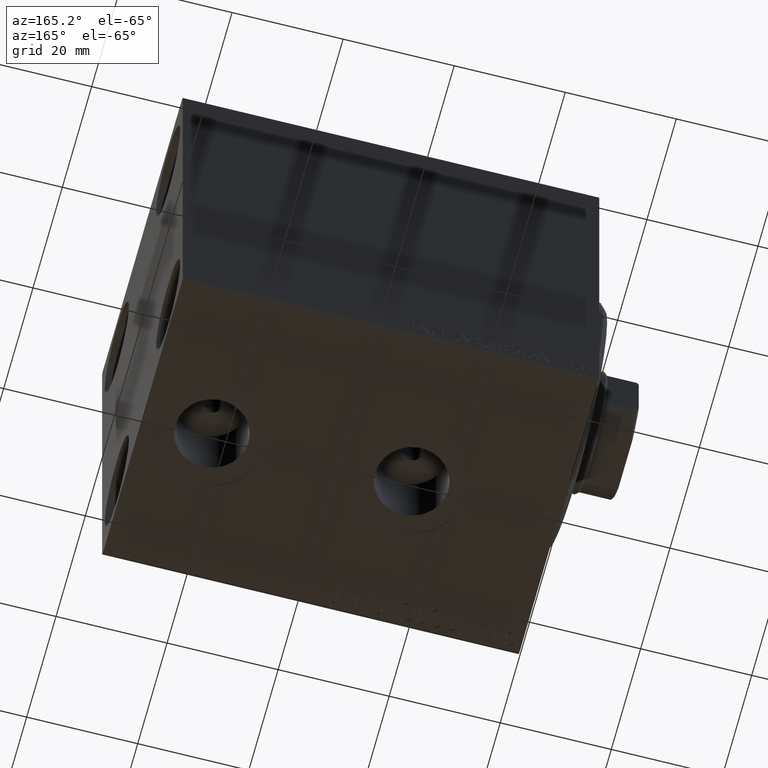
[diagram: clean part render]
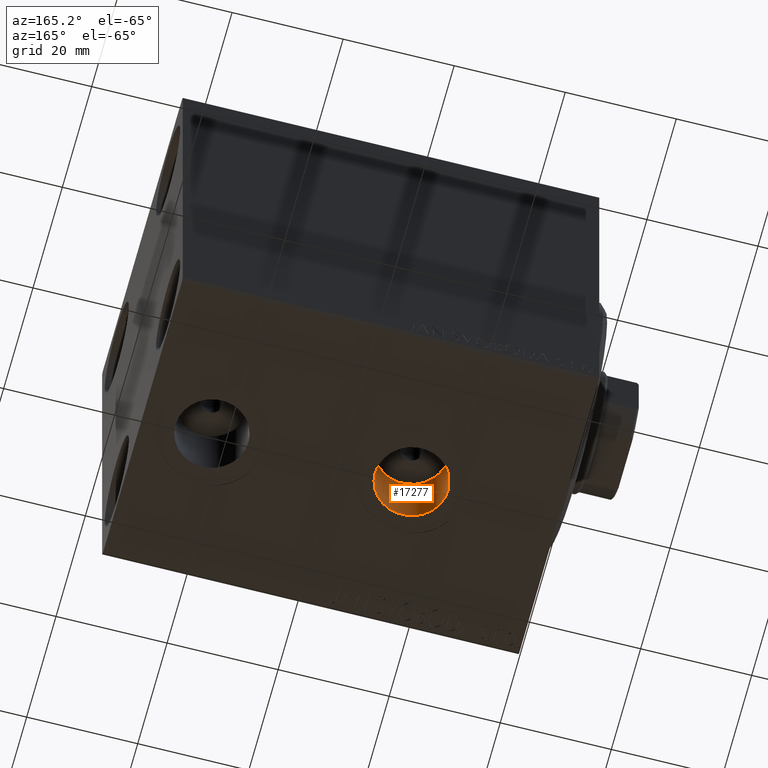
[diagram: same view with one face highlighted and labeled with its STEP entity id]
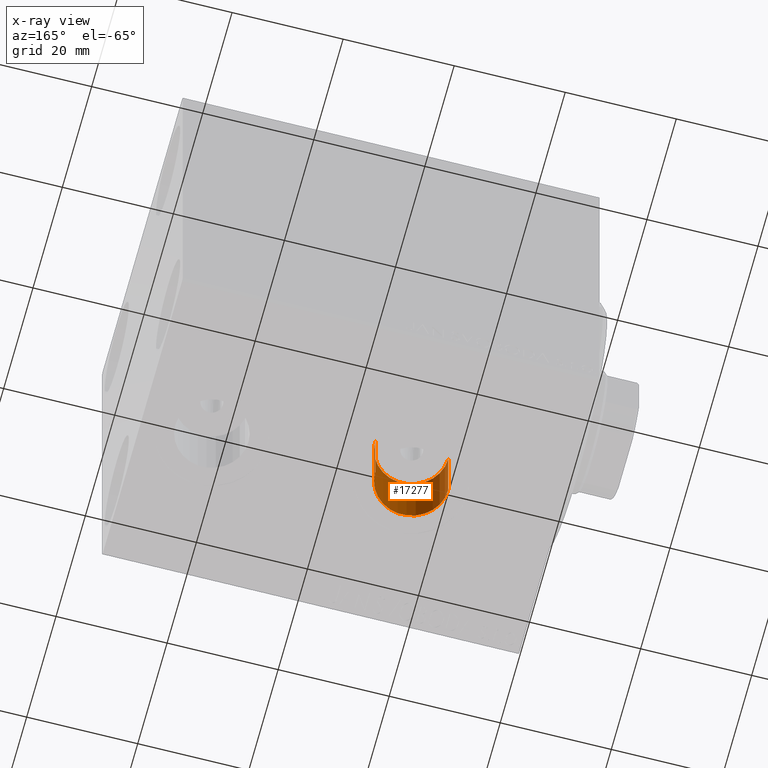
[diagram: x-ray of the same camera — body ghosted, the highlighted face saturated]
A machine part, auxiliary view. The second image highlights one B-rep face of the part: STEP entity #17277.
The next image is the same camera in x-ray: the body ghosted, the highlighted face saturated — about 0% of this face is hidden behind the body in this view.
In plain terms, the highlighted cylindrical surface (partial cylindrical patch) has radius 6.58 mm, axis along (-0, -0, -1).
Its self-contained STEP definition (entity closure, byte-faithful):
#23 = CARTESIAN_POINT ( 'NONE',  ( 33.07999999999999829, -1.921168617569957634E-15, -37.39999999999999858 ) ) ;
#1843 = DIRECTION ( 'NONE',  ( -1.000000000000000000, 0.000000000000000000, 0.000000000000000000 ) ) ;
#5344 = EDGE_CURVE ( 'NONE', #40597, #42571, #19593, .T. ) ;
#5541 = CARTESIAN_POINT ( 'NONE',  ( 19.91999999999999815, -2.726986211408916281E-15, -37.39999999999999858 ) ) ;
#5827 = DIRECTION ( 'NONE',  ( -1.000000000000000000, 0.000000000000000000, 0.000000000000000000 ) ) ;
#6739 = AXIS2_PLACEMENT_3D ( 'NONE', #29783, #32242, #43348 ) ;
#7258 = VERTEX_POINT ( 'NONE', #35401 ) ;
#7777 = CARTESIAN_POINT ( 'NONE',  ( 33.07999999999999829, -1.921168617569958028E-15, -24.49999999999999289 ) ) ;
#8822 = ORIENTED_EDGE ( 'NONE', *, *, #5344, .T. ) ;
#11108 = CIRCLE ( 'NONE', #40963, 6.580000000000002736 ) ;
#16519 = LINE ( 'NONE', #36517, #19015 ) ;
#17277 = ADVANCED_FACE ( 'NONE', ( #19569 ), #19127, .F. ) ;
#18547 = EDGE_LOOP ( 'NONE', ( #32782, #36587, #8822, #26257 ) ) ;
#18779 = CARTESIAN_POINT ( 'NONE',  ( 26.50000000000000000, -2.726986211408916281E-15, -24.49999999999999289 ) ) ;
#18821 = EDGE_CURVE ( 'NONE', #7258, #40597, #38248, .T. ) ;
#19015 = VECTOR ( 'NONE', #29860, 1000.000000000000000 ) ;
#19127 = CYLINDRICAL_SURFACE ( 'NONE', #6739, 6.580000000000002736 ) ;
#19208 = CARTESIAN_POINT ( 'NONE',  ( 26.50000000000000000, -2.726986211408916281E-15, -37.39999999999999858 ) ) ;
#19569 = FACE_OUTER_BOUND ( 'NONE', #18547, .T. ) ;
#19593 = CIRCLE ( 'NONE', #33782, 6.580000000000002736 ) ;
#21371 = DIRECTION ( 'NONE',  ( -0.000000000000000000, -0.000000000000000000, -1.000000000000000000 ) ) ;
#22401 = EDGE_CURVE ( 'NONE', #7258, #35766, #11108, .T. ) ;
#25113 = EDGE_CURVE ( 'NONE', #35766, #42571, #16519, .T. ) ;
#26082 = DIRECTION ( 'NONE',  ( 0.000000000000000000, 0.000000000000000000, -1.000000000000000000 ) ) ;
#26257 = ORIENTED_EDGE ( 'NONE', *, *, #25113, .F. ) ;
#28110 = VECTOR ( 'NONE', #21371, 1000.000000000000000 ) ;
#29783 = CARTESIAN_POINT ( 'NONE',  ( 26.50000000000000000, -2.726986211408916281E-15, -24.49999999999999289 ) ) ;
#29860 = DIRECTION ( 'NONE',  ( -0.000000000000000000, -0.000000000000000000, -1.000000000000000000 ) ) ;
#32242 = DIRECTION ( 'NONE',  ( -0.000000000000000000, -0.000000000000000000, -1.000000000000000000 ) ) ;
#32323 = DIRECTION ( 'NONE',  ( 0.000000000000000000, 0.000000000000000000, -1.000000000000000000 ) ) ;
#32782 = ORIENTED_EDGE ( 'NONE', *, *, #22401, .F. ) ;
#33782 = AXIS2_PLACEMENT_3D ( 'NONE', #19208, #26082, #5827 ) ;
#35401 = CARTESIAN_POINT ( 'NONE',  ( 33.07999999999999829, -1.921168617569957634E-15, -24.49999999999999289 ) ) ;
#35766 = VERTEX_POINT ( 'NONE', #37781 ) ;
#36517 = CARTESIAN_POINT ( 'NONE',  ( 19.91999999999999815, -2.726986211408916281E-15, -24.49999999999999289 ) ) ;
#36587 = ORIENTED_EDGE ( 'NONE', *, *, #18821, .T. ) ;
#37781 = CARTESIAN_POINT ( 'NONE',  ( 19.91999999999999815, -2.726986211408916281E-15, -24.49999999999999289 ) ) ;
#38248 = LINE ( 'NONE', #7777, #28110 ) ;
#40597 = VERTEX_POINT ( 'NONE', #23 ) ;
#40963 = AXIS2_PLACEMENT_3D ( 'NONE', #18779, #32323, #1843 ) ;
#42571 = VERTEX_POINT ( 'NONE', #5541 ) ;
#43348 = DIRECTION ( 'NONE',  ( -1.000000000000000000, 0.000000000000000000, 0.000000000000000000 ) ) ;